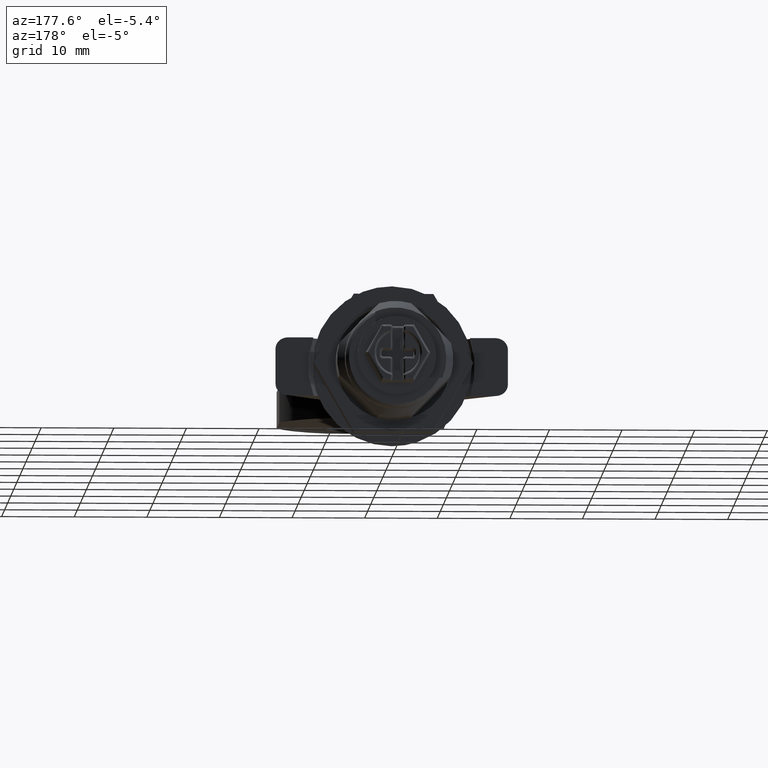
[diagram: clean part render]
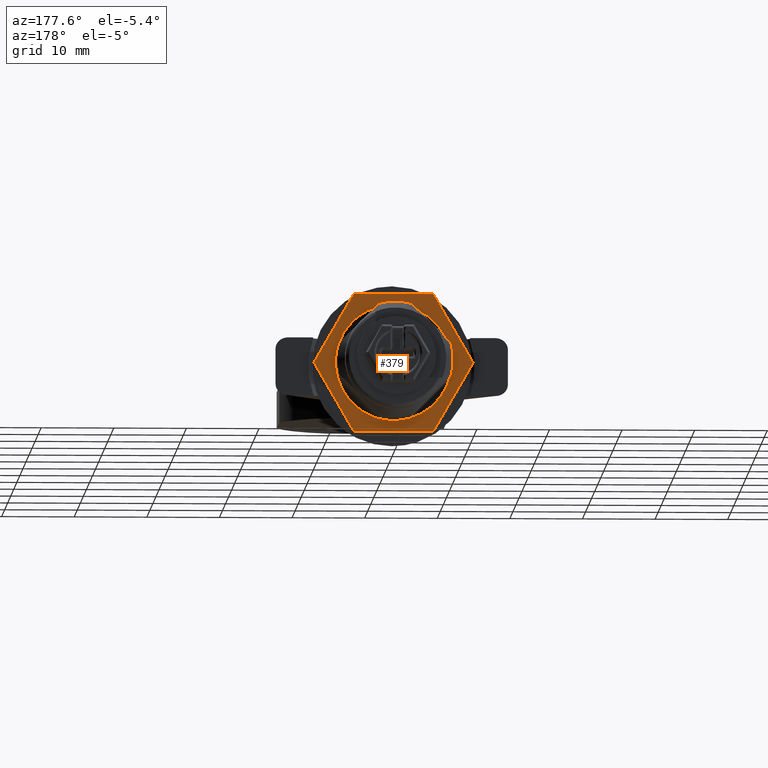
[diagram: same view with one face highlighted and labeled with its STEP entity id]
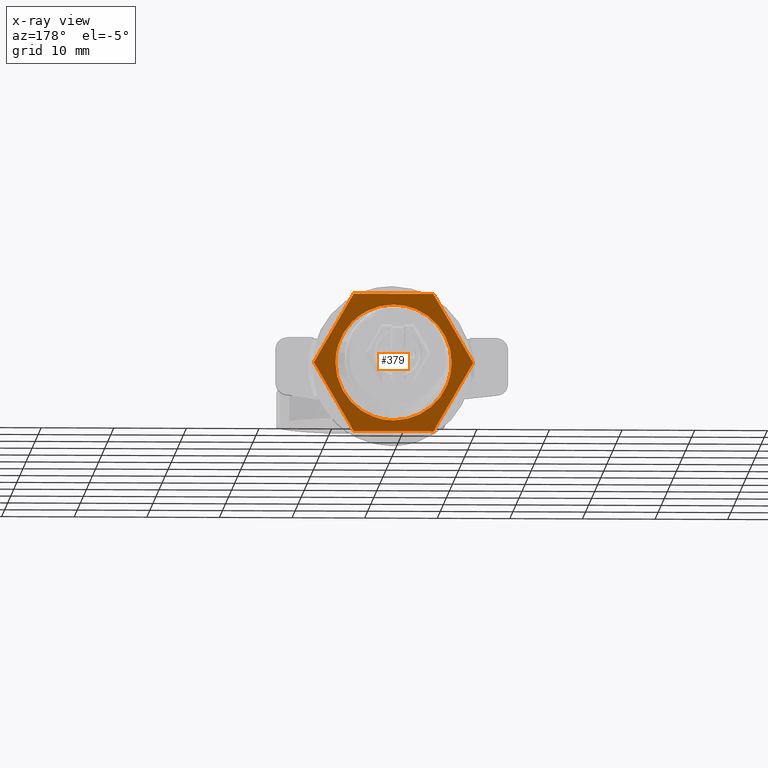
[diagram: x-ray of the same camera — body ghosted, the highlighted face saturated]
A machine part, auxiliary view. The second image highlights one B-rep face of the part: STEP entity #379.
The next image is the same camera in x-ray: the body ghosted, the highlighted face saturated — about 0% of this face is hidden behind the body in this view.
In plain terms, the highlighted face is a freeform B-spline surface patch.
Its self-contained STEP definition (entity closure, byte-faithful):
#129=CARTESIAN_POINT('',(5.000000237487261,-5.898218840994394,-5.404721772426657));
#130=VERTEX_POINT('',#129);
#136=CARTESIAN_POINT('',(5.000000237487260,0.0,-8.0));
#137=VERTEX_POINT('',#136);
#138=CARTESIAN_POINT('',(5.000000237487261,-5.898218840994394,-5.404721772426657));
#139=CARTESIAN_POINT('',(5.000000237487256,-5.594861133153757,-5.735823469645155));
#140=CARTESIAN_POINT('',(5.000000237487280,-4.906706740692648,-6.370245872950332));
#141=CARTESIAN_POINT('',(5.000000237487243,-3.767840321279829,-7.100201669818298));
#142=CARTESIAN_POINT('',(5.000000237487287,-2.683510302274472,-7.560580906844325));
#143=CARTESIAN_POINT('',(5.000000237487237,-1.450765552319010,-7.904458192957968));
#144=CARTESIAN_POINT('',(5.000000237487276,-0.587244119098269,-8.000121022466271));
#145=CARTESIAN_POINT('',(5.000000237487260,0.0,-8.0));
#146=B_SPLINE_CURVE_WITH_KNOTS('',3,(#138,#139,#140,#141,#142,#143,#144,#145),.UNSPECIFIED.,.F.,.U.,(4,1,1,1,1,4),(0.000000010933810,1.347183250636076,2.798012002871959,4.041545420432666,4.870593347921867,6.632297616841507),.UNSPECIFIED.);
#147=EDGE_CURVE('',#130,#137,#146,.T.);
#149=CARTESIAN_POINT('',(5.000000237487260,7.999999999999966,0.000000736202370));
#150=VERTEX_POINT('',#149);
#151=CARTESIAN_POINT('',(5.000000237487260,0.0,-8.0));
#152=CARTESIAN_POINT('',(5.000000237487259,0.556326341318629,-8.000068979370923));
#153=CARTESIAN_POINT('',(5.000000237487267,1.668944362770118,-7.883489207911232));
#154=CARTESIAN_POINT('',(5.000000237487257,3.359496610425112,-7.336614900588406));
#155=CARTESIAN_POINT('',(5.000000237487255,4.773523555674915,-6.489063587082460));
#156=CARTESIAN_POINT('',(5.000000237487271,5.934508947085597,-5.423555136363416));
#157=CARTESIAN_POINT('',(5.000000237487260,6.897516544325786,-4.174129609643568));
#158=CARTESIAN_POINT('',(5.000000237487213,7.602370290476302,-2.683812499629001));
#159=CARTESIAN_POINT('',(5.000000237487329,7.942496476321516,-1.210814208544446));
#160=CARTESIAN_POINT('',(5.000000237487318,8.000007979793473,-0.359970827387035));
#161=CARTESIAN_POINT('',(5.000000237487260,7.999999999999966,0.000000736202370));
#162=B_SPLINE_CURVE_WITH_KNOTS('',3,(#151,#152,#153,#154,#155,#156,#157,#158,#159,#160,#161),.UNSPECIFIED.,.F.,.U.,(4,1,1,1,1,1,1,1,4),(0.000000041844798,1.668978441717004,3.337964517092388,5.301484433793845,6.577725090954932,8.050372955085653,10.013894658072710,11.486526863778019,12.566449877939959),.UNSPECIFIED.);
#163=EDGE_CURVE('',#137,#150,#162,.T.);
#165=CARTESIAN_POINT('',(5.000000237487260,0.0,8.0));
#166=VERTEX_POINT('',#165);
#167=CARTESIAN_POINT('',(5.000000237487260,7.999999999999966,0.000000736202370));
#168=CARTESIAN_POINT('',(5.000000237487258,8.000080042752908,0.556330793373025));
#169=CARTESIAN_POINT('',(5.000000237487264,7.910876849912023,1.407138127092336));
#170=CARTESIAN_POINT('',(5.000000237487262,7.551886884337162,2.736059358350986));
#171=CARTESIAN_POINT('',(5.000000237487252,7.018909348596032,3.938562359164955));
#172=CARTESIAN_POINT('',(5.000000237487268,6.212266633448879,5.098855853147833));
#173=CARTESIAN_POINT('',(5.000000237487257,5.295597335883303,6.038260028927519));
#174=CARTESIAN_POINT('',(5.000000237487262,4.114506404804825,6.925708116416927));
#175=CARTESIAN_POINT('',(5.000000237487268,2.862661700625898,7.517781273829637));
#176=CARTESIAN_POINT('',(5.000000237487241,1.407124926872113,7.910857257711303));
#177=CARTESIAN_POINT('',(5.000000237487288,0.556327796597572,8.000084286037986));
#178=CARTESIAN_POINT('',(5.000000237487260,0.0,8.0));
#179=B_SPLINE_CURVE_WITH_KNOTS('',3,(#167,#168,#169,#170,#171,#172,#173,#174,#175,#176,#177,#178),.UNSPECIFIED.,.F.,.U.,(4,1,1,1,1,1,1,1,1,4),(0.000000042097135,1.668978331805855,2.552555865271685,4.123369060604436,5.596024582390307,6.774070680806150,8.050372423089868,10.013893996624221,10.897481730840131,12.566449048063120),.UNSPECIFIED.);
#180=EDGE_CURVE('',#150,#166,#179,.T.);
#182=CARTESIAN_POINT('',(5.000000237487261,-5.733207612980809,5.579455844680248));
#183=VERTEX_POINT('',#182);
#184=CARTESIAN_POINT('',(5.000000237487260,0.0,8.0));
#185=CARTESIAN_POINT('',(5.000000237487282,-0.632553757162377,8.000164293483561));
#186=CARTESIAN_POINT('',(5.000000237487234,-1.531337104331696,7.892801990863678));
#187=CARTESIAN_POINT('',(5.000000237487280,-2.842027195237163,7.505743748755568));
#188=CARTESIAN_POINT('',(5.000000237487235,-4.212472171754681,6.886522575994309));
#189=CARTESIAN_POINT('',(5.000000237487287,-5.199383876691280,6.128442060147122));
#190=CARTESIAN_POINT('',(5.000000237487261,-5.733207612980809,5.579455844680248));
#191=B_SPLINE_CURVE_WITH_KNOTS('',3,(#184,#185,#186,#187,#188,#189,#190),.UNSPECIFIED.,.F.,.U.,(4,1,1,1,4),(0.000000012765420,1.897612427622568,2.696616457467183,4.094837702589187,6.391949007256152),.UNSPECIFIED.);
#192=EDGE_CURVE('',#166,#183,#191,.T.);
#229=CARTESIAN_POINT('',(5.000000237487261,-7.999999999999966,-0.000000736202491));
#230=VERTEX_POINT('',#229);
#231=CARTESIAN_POINT('',(5.000000237487261,-5.733207612980809,5.579455844680248));
#232=CARTESIAN_POINT('',(5.000000237487264,-6.069669307685750,5.233788738401080));
#233=CARTESIAN_POINT('',(5.000000237487261,-6.618728921338267,4.556560857617374));
#234=CARTESIAN_POINT('',(5.000000237487260,-7.337947883946125,3.296414292150987));
#235=CARTESIAN_POINT('',(5.000000237487261,-7.863015527884757,1.800838855952197));
#236=CARTESIAN_POINT('',(5.000000237487253,-8.000123899622464,0.611025472127004));
#237=CARTESIAN_POINT('',(5.000000237487261,-7.999999999999966,-0.000000736202491));
#238=B_SPLINE_CURVE_WITH_KNOTS('',3,(#231,#232,#233,#234,#235,#236,#237),.UNSPECIFIED.,.F.,.U.,(4,1,1,1,4),(0.000000014041515,1.447148338203109,2.604879588468491,4.341442920699636,6.174501118184125),.UNSPECIFIED.);
#239=EDGE_CURVE('',#183,#230,#238,.T.);
#241=CARTESIAN_POINT('',(5.000000237487261,-7.999999999999966,-0.000000736202491));
#242=CARTESIAN_POINT('',(5.000000237487265,-8.000169758148768,-0.649062872650446));
#243=CARTESIAN_POINT('',(5.000000237487280,-7.867593240793876,-1.730716154314121));
#244=CARTESIAN_POINT('',(5.000000237487234,-7.442398662005937,-2.994477536100047));
#245=CARTESIAN_POINT('',(5.000000237487302,-6.861321957750832,-4.191309956787792));
#246=CARTESIAN_POINT('',(5.000000237487234,-6.336847758945419,-4.926293757846031));
#247=CARTESIAN_POINT('',(5.000000237487261,-5.898218840994394,-5.404721772426657));
#248=B_SPLINE_CURVE_WITH_KNOTS('',3,(#241,#242,#243,#244,#245,#246,#247),.UNSPECIFIED.,.F.,.U.,(4,1,1,1,4),(0.000000014414928,1.947148041025117,3.245225256638460,3.987003957219261,5.934151983837912),.UNSPECIFIED.);
#249=EDGE_CURVE('',#230,#130,#248,.T.);
#322=CARTESIAN_POINT('',(5.000000237487290,-12.065524603008690,10.449050034879409));
#323=CARTESIAN_POINT('',(5.000000237487290,12.065524799161301,10.449050034879409));
#324=CARTESIAN_POINT('',(5.000000237487290,-12.065524603008690,-10.449049525259660));
#325=CARTESIAN_POINT('',(5.000000237487290,12.065524799161301,-10.449049525259660));
#326=B_SPLINE_SURFACE_WITH_KNOTS('',1,1,((#322,#324),(#323,#325)),.UNSPECIFIED.,.F.,.F.,.U.,(2,2),(2,2),(0.0,24.131049402169989),(0.0,20.898099560139070),.UNSPECIFIED.);
#327=CARTESIAN_POINT('',(5.000000237487260,5.484827817816270,9.500000451225821));
#328=VERTEX_POINT('',#327);
#329=CARTESIAN_POINT('',(5.000000237487260,-5.484827817816440,9.500000451225821));
#330=VERTEX_POINT('',#329);
#331=CARTESIAN_POINT('',(5.000000237487260,5.484827817816270,9.500000451225821));
#332=CARTESIAN_POINT('',(5.000000237487260,-5.484827817816440,9.500000451225821));
#333=QUASI_UNIFORM_CURVE('',1,(#331,#332),.UNSPECIFIED.,.F.,.U.);
#334=EDGE_CURVE('',#328,#330,#333,.T.);
#335=ORIENTED_EDGE('',*,*,#334,.T.);
#336=CARTESIAN_POINT('',(5.000000237487260,-10.969655635630721,0.0));
#337=VERTEX_POINT('',#336);
#338=CARTESIAN_POINT('',(5.000000237487260,-5.484827817816440,9.500000451225821));
#339=CARTESIAN_POINT('',(5.000000237487260,-10.969655635630721,0.0));
#340=QUASI_UNIFORM_CURVE('',1,(#338,#339),.UNSPECIFIED.,.F.,.U.);
#341=EDGE_CURVE('',#330,#337,#340,.T.);
#342=ORIENTED_EDGE('',*,*,#341,.T.);
#343=CARTESIAN_POINT('',(5.000000237487260,-5.484827817816440,-9.500000451225802));
#344=VERTEX_POINT('',#343);
#345=CARTESIAN_POINT('',(5.000000237487260,-10.969655635630721,0.0));
#346=CARTESIAN_POINT('',(5.000000237487260,-5.484827817816440,-9.500000451225802));
#347=QUASI_UNIFORM_CURVE('',1,(#345,#346),.UNSPECIFIED.,.F.,.U.);
#348=EDGE_CURVE('',#337,#344,#347,.T.);
#349=ORIENTED_EDGE('',*,*,#348,.T.);
#350=CARTESIAN_POINT('',(5.000000237487260,5.484827817816380,-9.500000451225802));
#351=VERTEX_POINT('',#350);
#352=CARTESIAN_POINT('',(5.000000237487260,-5.484827817816440,-9.500000451225802));
#353=CARTESIAN_POINT('',(5.000000237487260,5.484827817816380,-9.500000451225802));
#354=QUASI_UNIFORM_CURVE('',1,(#352,#353),.UNSPECIFIED.,.F.,.U.);
#355=EDGE_CURVE('',#344,#351,#354,.T.);
#356=ORIENTED_EDGE('',*,*,#355,.T.);
#357=CARTESIAN_POINT('',(5.000000237487260,10.969655635630600,0.0));
#358=VERTEX_POINT('',#357);
#359=CARTESIAN_POINT('',(5.000000237487260,5.484827817816380,-9.500000451225802));
#360=CARTESIAN_POINT('',(5.000000237487260,10.969655635630600,0.0));
#361=QUASI_UNIFORM_CURVE('',1,(#359,#360),.UNSPECIFIED.,.F.,.U.);
#362=EDGE_CURVE('',#351,#358,#361,.T.);
#363=ORIENTED_EDGE('',*,*,#362,.T.);
#364=CARTESIAN_POINT('',(5.000000237487260,10.969655635630600,0.0));
#365=CARTESIAN_POINT('',(5.000000237487260,5.484827817816270,9.500000451225821));
#366=QUASI_UNIFORM_CURVE('',1,(#364,#365),.UNSPECIFIED.,.F.,.U.);
#367=EDGE_CURVE('',#358,#328,#366,.T.);
#368=ORIENTED_EDGE('',*,*,#367,.T.);
#369=EDGE_LOOP('',(#335,#342,#349,#356,#363,#368));
#370=FACE_OUTER_BOUND('',#369,.T.);
#371=ORIENTED_EDGE('',*,*,#163,.F.);
#372=ORIENTED_EDGE('',*,*,#147,.F.);
#373=ORIENTED_EDGE('',*,*,#249,.F.);
#374=ORIENTED_EDGE('',*,*,#239,.F.);
#375=ORIENTED_EDGE('',*,*,#192,.F.);
#376=ORIENTED_EDGE('',*,*,#180,.F.);
#377=EDGE_LOOP('',(#371,#372,#373,#374,#375,#376));
#378=FACE_BOUND('',#377,.T.);
#379=ADVANCED_FACE('',(#370,#378),#326,.F.);